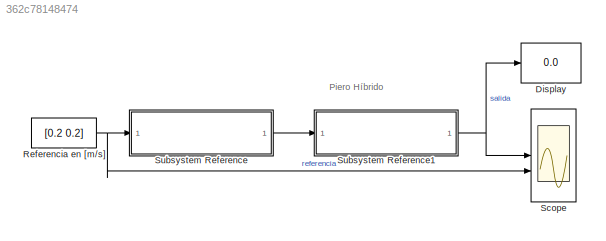
MODEL slx_362c78148474
KIND model
CONFIG AbsTol = auto
CONFIG EnableMultiTasking = on
CONFIG FixedStep = auto
CONFIG MaxStep = auto
CONFIG MinStep = auto
CONFIG RelTol = 1e-3
CONFIG SampleTimeConstraint = Unconstrained
CONFIG SolverName = FixedStepAuto
CONFIG StartTime = 0.0
CONFIG StopTime = inf
BLOCK [Display] Display
  Decimation = 1
BLOCK [Constant] Referencia en [m//s]
  Value = [0.2 0.2]
BLOCK [Scope] Scope
  Floating = off
  NumInputPorts = 2
  ScopeSpecificationString = Simulink.scopes.TimeScopeBlockCfg('CurrentConfiguration', extmgr.ConfigurationSet(extmgr.Configuration('Core','General UI',true),extmgr.Configuration('Core','Source UI',true),extmgr.Configuration('Sources','WiredSimulink',true),extmgr.Configuration('Visuals','Time Domain',true,'SerializedDisplays',{struct('MinYLimReal','-0.02839','MaxYLimReal','0.25554','YLabelReal','','MinYLimMag','0.00000','MaxY...<+2187ch>
BLOCK [SubSystem] Subsystem Reference
  ReferencedSubsystem = ControladorBA
BLOCK [SubSystem] Subsystem Reference1
  ReferencedSubsystem = Piero
ANNOTATION (root): Piero Híbrido
NET Referencia en [m//s]:1 -> Scope:2, Subsystem Reference:1
NET Subsystem Reference1:1 -> Display:1, Scope:1
LINE Subsystem Reference:1 -> Subsystem Reference1:1
note: NET lines group one-source signal fan-out (src -> all destinations, sorted); 1:1 wires keep LINE
